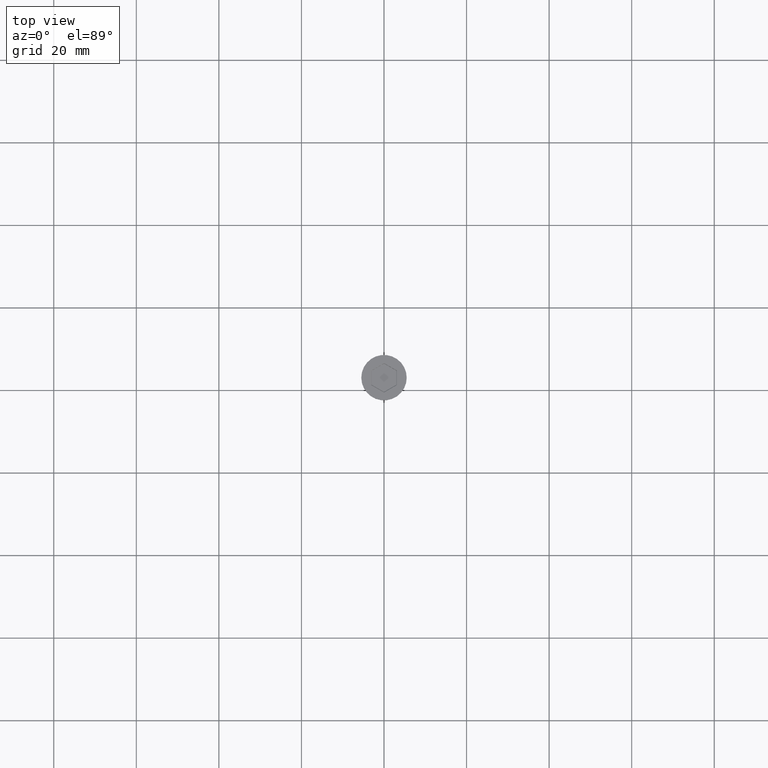
[diagram: clean part render]
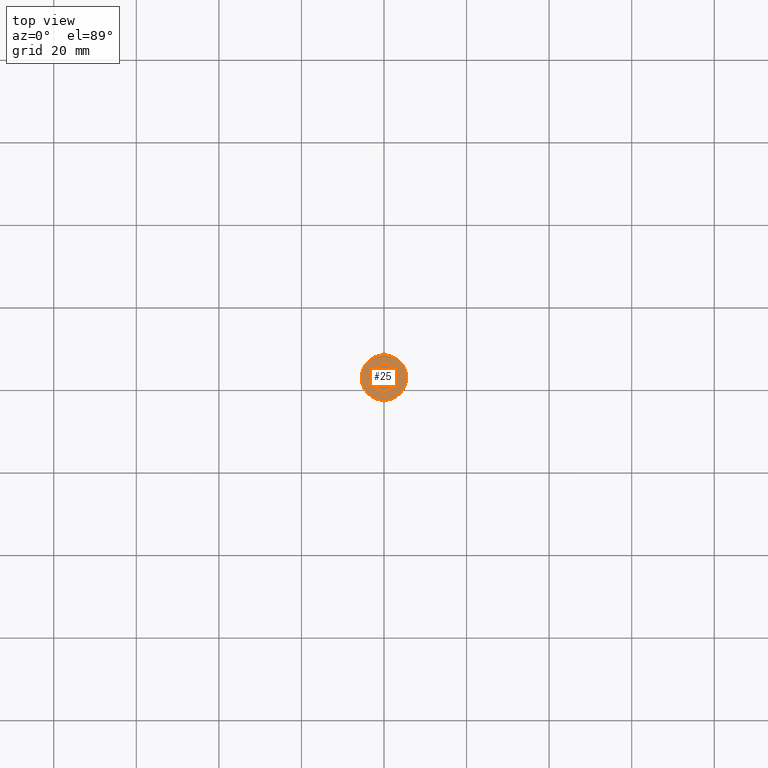
[diagram: same view with one face highlighted and labeled with its STEP entity id]
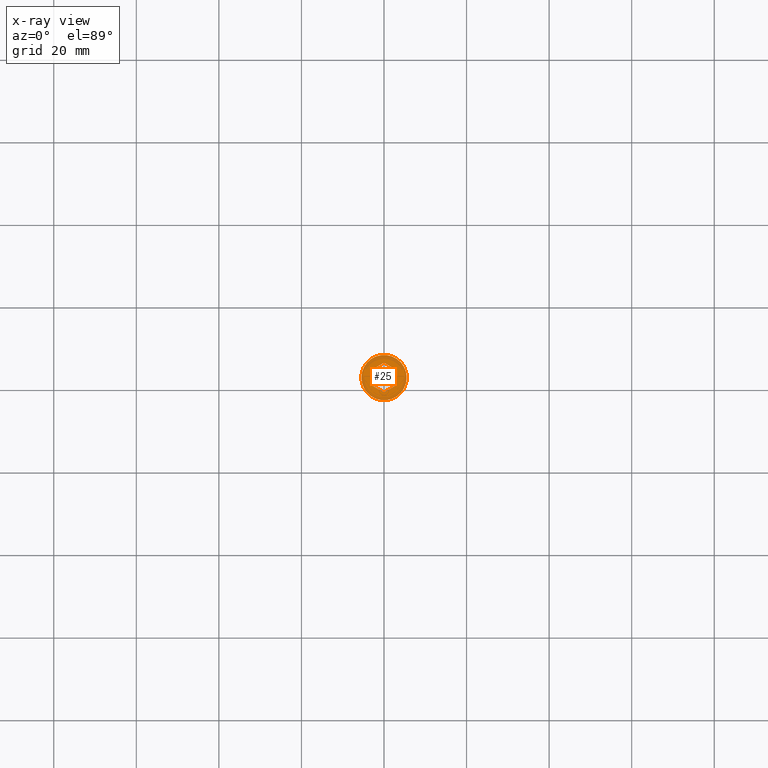
[diagram: x-ray of the same camera — body ghosted, the highlighted face saturated]
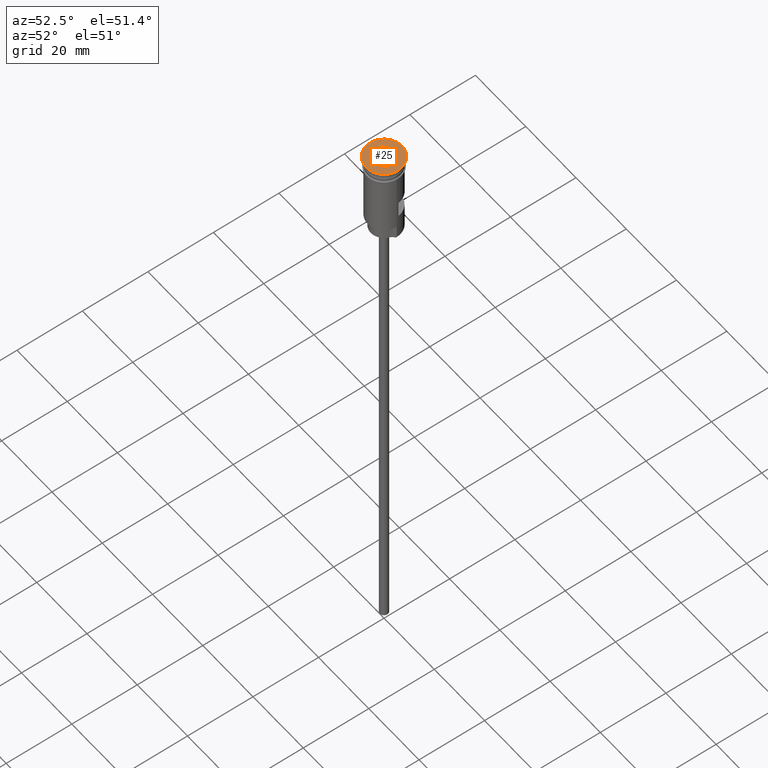
[diagram: same view with one face highlighted and labeled with its STEP entity id]
A machine part, top view. The second image highlights one B-rep face of the part: STEP entity #25.
The next image is the same camera in x-ray: the body ghosted, the highlighted face saturated — about 0% of this face is hidden behind the body in this view.
A second angle (auxiliary view) of the same face is appended — the face is thin or edge-on in the first view.
In plain terms, the highlighted planar face has unit normal (0, -0, 1).
Its self-contained STEP definition (entity closure, byte-faithful):
#14 = LINE ( 'NONE', #1379, #794 ) ;
#25 = ADVANCED_FACE ( 'NONE', ( #60, #334 ), #1178, .T. ) ;
#60 = FACE_BOUND ( 'NONE', #594, .T. ) ;
#67 = CARTESIAN_POINT ( 'NONE',  ( -3.099999999999983213, 1.732050807568876971, 0.000000000000000000 ) ) ;
#80 = LINE ( 'NONE', #1177, #1118 ) ;
#112 = CIRCLE ( 'NONE', #870, 5.500000000000000000 ) ;
#231 = ORIENTED_EDGE ( 'NONE', *, *, #1174, .T. ) ;
#246 = VECTOR ( 'NONE', #769, 1000.000000000000000 ) ;
#250 = DIRECTION ( 'NONE',  ( 0.8660254037844388186, -0.4999999999999997780, 0.000000000000000000 ) ) ;
#279 = ORIENTED_EDGE ( 'NONE', *, *, #984, .T. ) ;
#285 = CARTESIAN_POINT ( 'NONE',  ( -3.049999999999991385, -1.818653347947305932, 0.000000000000000000 ) ) ;
#334 = FACE_OUTER_BOUND ( 'NONE', #1477, .T. ) ;
#351 = CARTESIAN_POINT ( 'NONE',  ( 3.099999999999983213, 1.789785834487831462, 0.000000000000000000 ) ) ;
#382 = VERTEX_POINT ( 'NONE', #1183 ) ;
#395 = CARTESIAN_POINT ( 'NONE',  ( 3.099999999999982769, -1.789785834487828353, 0.000000000000000000 ) ) ;
#488 = VERTEX_POINT ( 'NONE', #351 ) ;
#491 = VERTEX_POINT ( 'NONE', #1469 ) ;
#523 = CARTESIAN_POINT ( 'NONE',  ( 5.500000000000000000, 0.000000000000000000, 0.000000000000000000 ) ) ;
#537 = DIRECTION ( 'NONE',  ( 0.8660254037844387076, 0.4999999999999998890, 0.000000000000000000 ) ) ;
#573 = LINE ( 'NONE', #67, #1486 ) ;
#577 = VERTEX_POINT ( 'NONE', #523 ) ;
#594 = EDGE_LOOP ( 'NONE', ( #1567, #972, #849, #716, #686, #279 ) ) ;
#597 = CARTESIAN_POINT ( 'NONE',  ( -3.099999999999983213, 1.789785834487829908, 0.000000000000000000 ) ) ;
#686 = ORIENTED_EDGE ( 'NONE', *, *, #798, .T. ) ;
#698 = DIRECTION ( 'NONE',  ( -0.000000000000000000, -0.000000000000000000, 1.000000000000000000 ) ) ;
#716 = ORIENTED_EDGE ( 'NONE', *, *, #1005, .T. ) ;
#767 = CARTESIAN_POINT ( 'NONE',  ( 0.000000000000000000, 0.000000000000000000, 0.000000000000000000 ) ) ;
#769 = DIRECTION ( 'NONE',  ( -0.8660254037844387076, 0.4999999999999998335, 0.000000000000000000 ) ) ;
#778 = DIRECTION ( 'NONE',  ( -1.251928832280966188E-16, -1.000000000000000000, 0.000000000000000000 ) ) ;
#794 = VECTOR ( 'NONE', #537, 1000.000000000000000 ) ;
#798 = EDGE_CURVE ( 'NONE', #1000, #382, #80, .T. ) ;
#815 = DIRECTION ( 'NONE',  ( 1.000000000000000000, 0.000000000000000000, 0.000000000000000000 ) ) ;
#826 = DIRECTION ( 'NONE',  ( 0.000000000000000000, -0.000000000000000000, 1.000000000000000000 ) ) ;
#844 = AXIS2_PLACEMENT_3D ( 'NONE', #767, #1002, #1605 ) ;
#849 = ORIENTED_EDGE ( 'NONE', *, *, #878, .T. ) ;
#859 = ORIENTED_EDGE ( 'NONE', *, *, #1508, .T. ) ;
#870 = AXIS2_PLACEMENT_3D ( 'NONE', #1445, #698, #815 ) ;
#875 = VERTEX_POINT ( 'NONE', #1460 ) ;
#878 = EDGE_CURVE ( 'NONE', #491, #488, #1213, .T. ) ;
#910 = VECTOR ( 'NONE', #778, 1000.000000000000000 ) ;
#972 = ORIENTED_EDGE ( 'NONE', *, *, #1044, .T. ) ;
#984 = EDGE_CURVE ( 'NONE', #382, #875, #1391, .T. ) ;
#1000 = VERTEX_POINT ( 'NONE', #395 ) ;
#1002 = DIRECTION ( 'NONE',  ( -0.000000000000000000, -0.000000000000000000, 1.000000000000000000 ) ) ;
#1005 = EDGE_CURVE ( 'NONE', #488, #1000, #1502, .T. ) ;
#1044 = EDGE_CURVE ( 'NONE', #1293, #491, #14, .T. ) ;
#1048 = VERTEX_POINT ( 'NONE', #1261 ) ;
#1052 = DIRECTION ( 'NONE',  ( -0.8660254037844385966, -0.5000000000000001110, 0.000000000000000000 ) ) ;
#1062 = DIRECTION ( 'NONE',  ( 0.000000000000000000, 1.000000000000000000, 0.000000000000000000 ) ) ;
#1064 = VECTOR ( 'NONE', #250, 1000.000000000000114 ) ;
#1116 = AXIS2_PLACEMENT_3D ( 'NONE', #1151, #826, #1187 ) ;
#1118 = VECTOR ( 'NONE', #1052, 1000.000000000000114 ) ;
#1151 = CARTESIAN_POINT ( 'NONE',  ( 0.000000000000000000, 0.000000000000000000, 0.000000000000000000 ) ) ;
#1155 = CARTESIAN_POINT ( 'NONE',  ( 3.099999999999982769, -1.732050807568876083, 0.000000000000000000 ) ) ;
#1174 = EDGE_CURVE ( 'NONE', #1048, #577, #112, .T. ) ;
#1177 = CARTESIAN_POINT ( 'NONE',  ( 0.04999999999999141936, -3.550704155516182237, 0.000000000000000000 ) ) ;
#1178 = PLANE ( 'NONE',  #1116 ) ;
#1183 = CARTESIAN_POINT ( 'NONE',  ( -1.958864205101993824E-16, -3.579571668975658927, 0.000000000000000000 ) ) ;
#1187 = DIRECTION ( 'NONE',  ( 1.000000000000000000, 0.000000000000000000, 0.000000000000000000 ) ) ;
#1213 = LINE ( 'NONE', #1466, #1064 ) ;
#1261 = CARTESIAN_POINT ( 'NONE',  ( -5.500000000000000000, 6.735557395310442023E-16, 0.000000000000000000 ) ) ;
#1293 = VERTEX_POINT ( 'NONE', #597 ) ;
#1379 = CARTESIAN_POINT ( 'NONE',  ( -0.04999999999999187039, 3.550704155516183125, 0.000000000000000000 ) ) ;
#1391 = LINE ( 'NONE', #285, #246 ) ;
#1438 = CIRCLE ( 'NONE', #844, 5.500000000000000000 ) ;
#1445 = CARTESIAN_POINT ( 'NONE',  ( 0.000000000000000000, 0.000000000000000000, 0.000000000000000000 ) ) ;
#1460 = CARTESIAN_POINT ( 'NONE',  ( -3.099999999999983213, -1.789785834487829241, 0.000000000000000000 ) ) ;
#1466 = CARTESIAN_POINT ( 'NONE',  ( 3.049999999999991829, 1.818653347947307708, 0.000000000000000000 ) ) ;
#1469 = CARTESIAN_POINT ( 'NONE',  ( 6.103073414120078086E-16, 3.579571668975660259, 0.000000000000000000 ) ) ;
#1477 = EDGE_LOOP ( 'NONE', ( #859, #231 ) ) ;
#1486 = VECTOR ( 'NONE', #1062, 1000.000000000000000 ) ;
#1502 = LINE ( 'NONE', #1155, #910 ) ;
#1508 = EDGE_CURVE ( 'NONE', #577, #1048, #1438, .T. ) ;
#1565 = EDGE_CURVE ( 'NONE', #875, #1293, #573, .T. ) ;
#1567 = ORIENTED_EDGE ( 'NONE', *, *, #1565, .T. ) ;
#1605 = DIRECTION ( 'NONE',  ( 1.000000000000000000, 0.000000000000000000, 0.000000000000000000 ) ) ;